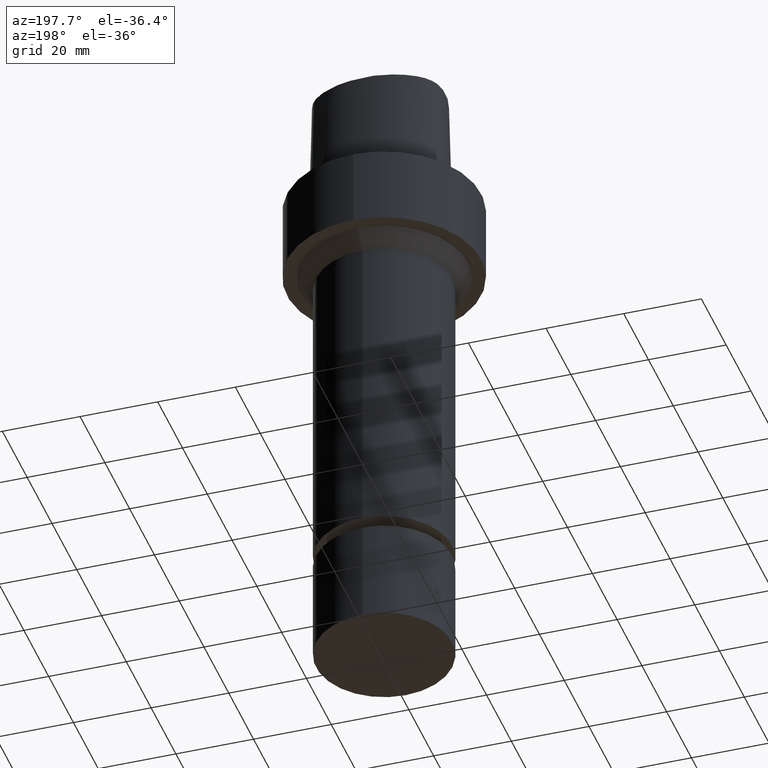
[diagram: clean part render]
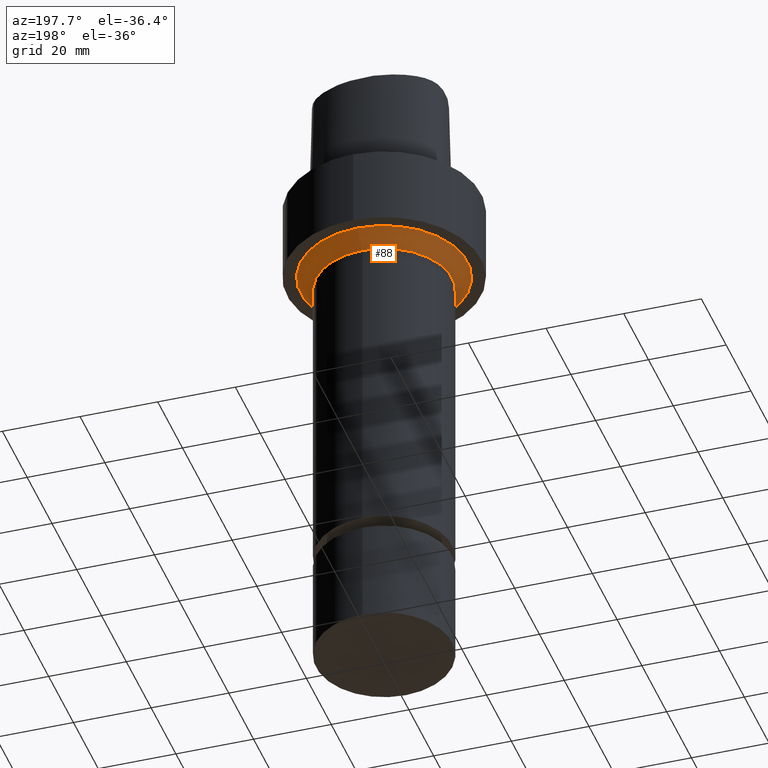
[diagram: same view with one face highlighted and labeled with its STEP entity id]
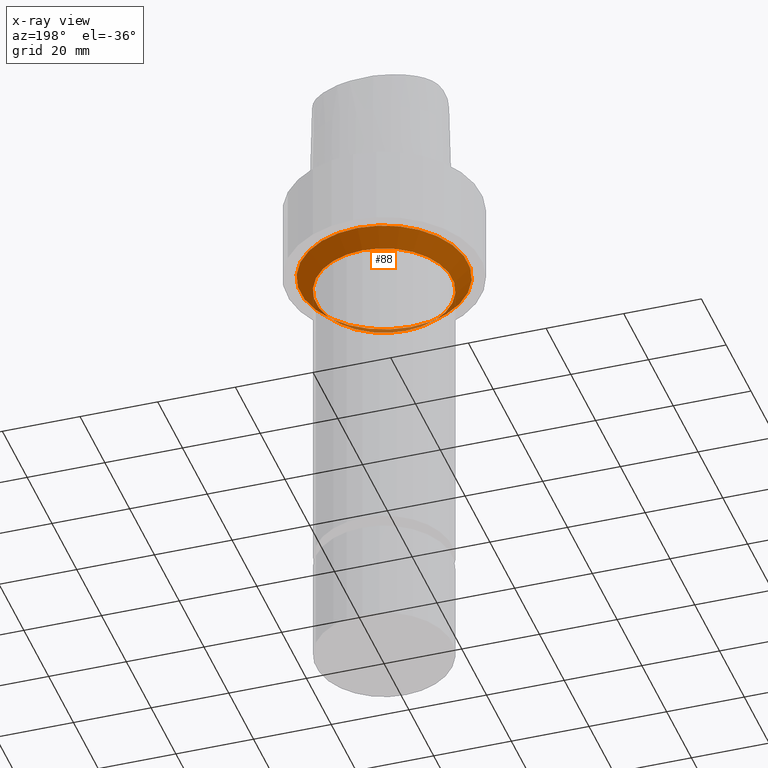
[diagram: x-ray of the same camera — body ghosted, the highlighted face saturated]
A machine part, auxiliary view. The second image highlights one B-rep face of the part: STEP entity #88.
The next image is the same camera in x-ray: the body ghosted, the highlighted face saturated — about 6% of this face is hidden behind the body in this view.
In plain terms, the highlighted conical surface has half-angle 45 deg.
Its self-contained STEP definition (entity closure, byte-faithful):
#88=ADVANCED_FACE('Unnamed[1]',(#202,#203),#204,.T.);
#101=EDGE_CURVE('Unnamed[1]',#222,#222,#223,.T.);
#130=EDGE_CURVE('Unnamed[1]',#264,#264,#265,.T.);
#202=FACE_BOUND('',#779,.T.);
#203=FACE_BOUND('',#780,.T.);
#204=CONICAL_SURFACE('',#781,19.4999999999995,0.785398163397447);
#222=VERTEX_POINT('',#899);
#223=CIRCLE('',#900,17.4999999999995);
#264=VERTEX_POINT('',#954);
#265=CIRCLE('',#955,21.4999999999995);
#779=EDGE_LOOP('',(#1023));
#780=EDGE_LOOP('',(#1024));
#781=AXIS2_PLACEMENT_3D('',#1025,#1026,#1027);
#899=CARTESIAN_POINT('',(1.46957615897682E-015,17.4999999999995,-24.0));
#900=AXIS2_PLACEMENT_3D('',#1044,#1045,#1046);
#954=CARTESIAN_POINT('',(1.22464679914735E-015,21.4999999999996,-20.0));
#955=AXIS2_PLACEMENT_3D('',#1088,#1089,#1090);
#1023=ORIENTED_EDGE('',*,*,#101,.F.);
#1024=ORIENTED_EDGE('',*,*,#130,.T.);
#1025=CARTESIAN_POINT('',(1.34711147906209E-015,2.69422295812418E-015,-22.0));
#1026=DIRECTION('',(-6.12323399573677E-017,-1.22464679914735E-016,1.0));
#1027=DIRECTION('',(-1.23259516440783E-032,1.0,1.22464679914735E-016));
#1044=CARTESIAN_POINT('',(1.46957615897682E-015,2.93915231795365E-015,-24.0));
#1045=DIRECTION('',(6.12323399573677E-017,1.22464679914735E-016,-1.0));
#1046=DIRECTION('',(-1.23259516440783E-032,1.0,1.22464679914735E-016));
#1088=CARTESIAN_POINT('',(1.22464679914735E-015,2.44929359829471E-015,-20.0));
#1089=DIRECTION('',(6.12323399573677E-017,1.22464679914735E-016,-1.0));
#1090=DIRECTION('',(-1.23259516440783E-032,1.0,1.22464679914735E-016));